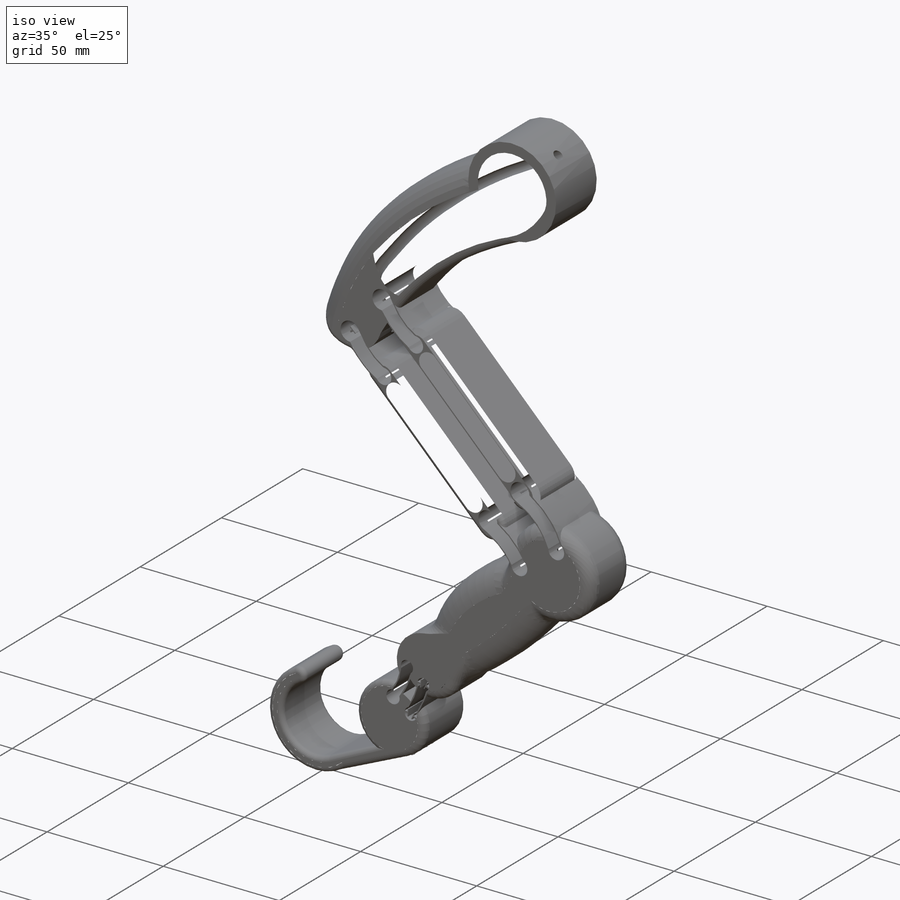
[diagram: iso view]
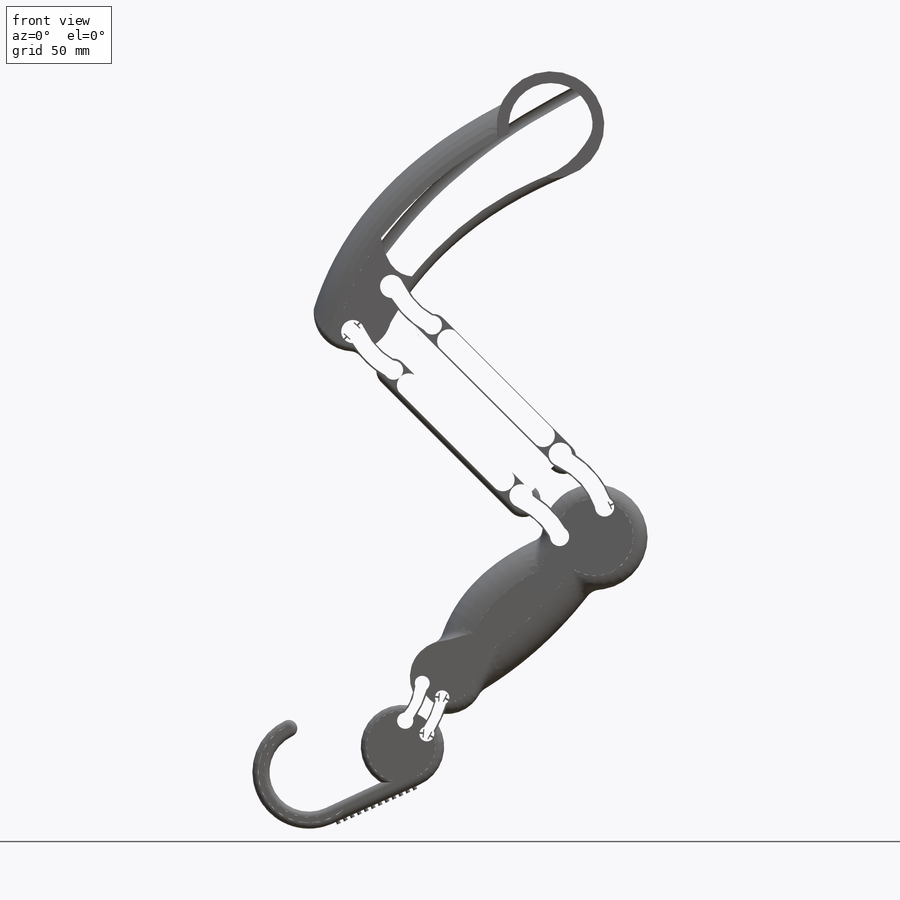
[diagram: front view]
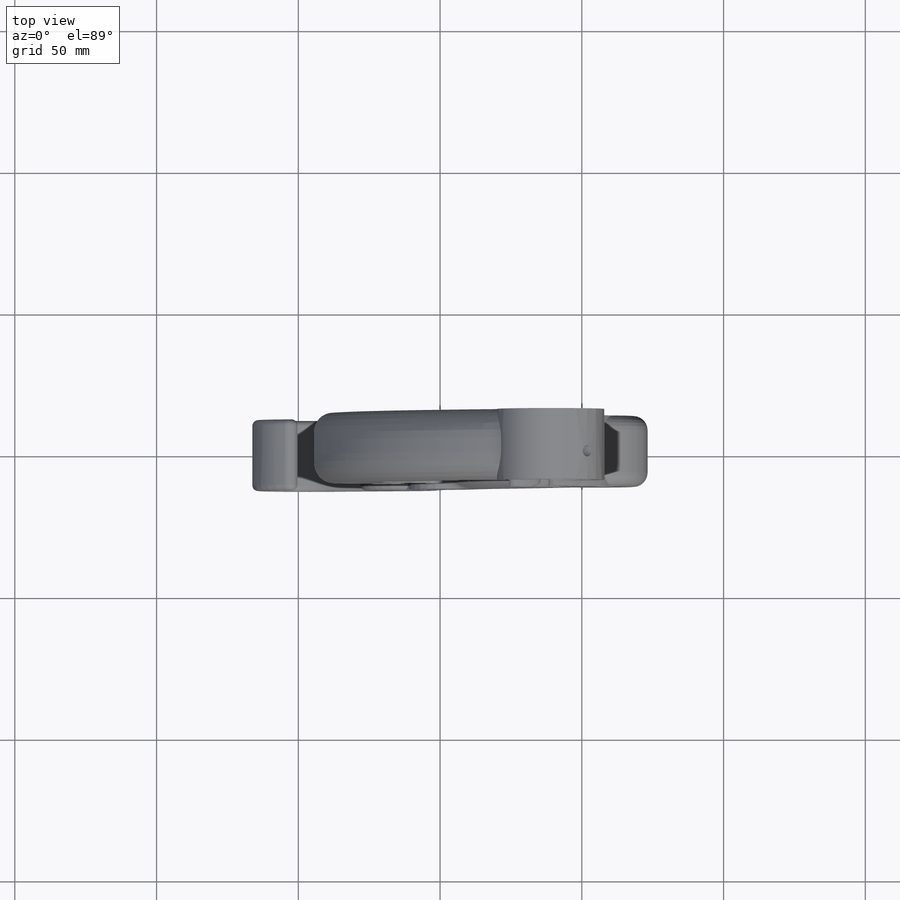
[diagram: top view]
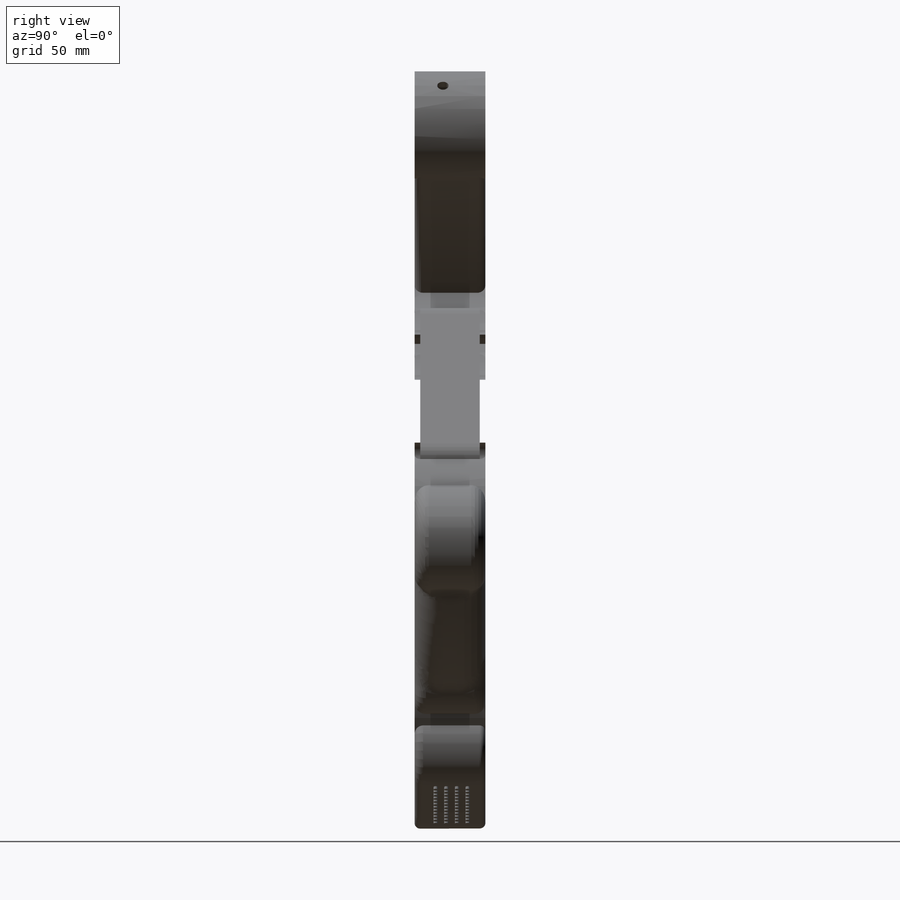
[diagram: right view]
SOLIDWORKS PART (.sldprt)
format: sldprt  version: not decoded by parser v0  size: 1,926,656 bytes
history: native  units: mm
features: fillet x24, sketch x19, extrude x13, plane x7, sweep x2, material x1 (+12 scaffold rows collapsed)
feature tree (78):
  scaffold x12  (default folders/planes/origin — collapsed)
  material  "Material <not specified>"
  sketch  "Sketch1"  dims[c1.D1=30.0mm c1.D2=~20.448397mm c2.D1=~70.600462mm c2.D2=10.0mm c2.D3=10.0mm c3.D1=~194.848427mm c3.D2=3.0mm c3.D3=3.0mm c4.D2=~19.791468mm c5.D2=~66.168793deg]
  extrude  "Boss-Extrude1"  Depth=25mm
  sketch  "Sketch1<3>"  dims[D1=25.0mm D5=0.5mm D6=1.0mm D7=5.0mm]
  extrude  "Boss-Extrude2"  [1 undecoded]
  sketch  "Sketch1<4>"  dims[D1=25.0mm]
  extrude  "Extrude-Thin2"  [1 undecoded]
  sketch  "Sketch1<5>"  dims[D1=25.0mm D5=0.5mm D6=1.0mm D7=5.0mm]
  extrude  "Boss-Extrude3"  [1 undecoded]
  sketch  "Sketch1<6>"  dims[D1=25.0mm]
  plane  "Plane1"
  sketch  "Sketch2"  dims[D1=~1.430174mm]
  sketch  "Sketch3"  dims[D1=10.0mm]
  sweep  "Cut-Sweep1"
  fillet  "Fillet5"  Radius=10mm
  fillet  "Fillet11"  Radius=2mm
  extrude  "Boss-Extrude4"  [1 undecoded]
  sketch  "Sketch1<7>"  dims[D1=25.0mm]
  fillet  "Fillet26"  Radius=10mm
  fillet  "Fillet27"  Radius=10mm
  fillet  "Fillet28"  Radius=5mm
  fillet  "Fillet29"  Radius=5mm
  fillet  "Fillet31"  Radius=6mm
  fillet  "Fillet34"  Radius=5mm
  extrude  "Extrude-Thin3"  [1 undecoded]
  sketch  "Sketch1<9>"  dims[D1=25.0mm D5=0.5mm D6=1.0mm D7=5.0mm]
  fillet  "Fillet40"  Radius=3mm
  extrude  "Boss-Extrude6"  [1 undecoded]
  sketch  "Sketch1<10>"  dims[D1=25.0mm]
  extrude  "Extrude-Thin5"  [1 undecoded]
  sketch  "Sketch1<12>"  dims[D1=25.0mm D5=0.5mm D6=1.0mm D7=5.0mm]
  fillet  "Fillet41"  Radius=3mm
  fillet  "Fillet43"  Radius=2mm
  plane  "Plane8"
  sketch  "Sketch5"
  extrude  "Boss-Extrude7"  Depth=1mm
  sketch  "Sketch6"  dims[c1.D1=12.0 c1.D3=50.0mm c1.D2=1.0 c1.D4=50.0mm c2.D1=4.0 c2.D3=50.0mm c2.D2=1.0 c2.D4=50.0mm]
  fillet  "Fillet44"  Radius=5mm
  fillet  "Fillet45"  Radius=6mm
  fillet  "Fillet46"  Radius=4mm
  fillet  "Fillet47"  Radius=4mm
  fillet  "Fillet48"  Radius=4mm
  extrude  "Boss-Extrude8"  [1 undecoded]
  sketch  "Sketch1<13>"  dims[D1=16.0mm]
  plane  "Plane9"
  sketch  "Sketch7"  dims[D1=~1.60428mm]
  sketch  "Sketch8"  dims[D1=10.0mm D2=15.0mm]
  sweep  "Cut-Sweep2"
  fillet  "Fillet49"  Radius=2mm
  fillet  "Fillet50"  Radius=2mm
  fillet  "Fillet51"  Radius=2mm
  fillet  "Fillet52"  Radius=2mm
  fillet  "Fillet53"  Radius=2mm
  fillet  "Fillet54"  Radius=1.8mm
  extrude  "Boss-Extrude9"  [1 undecoded]
  sketch  "Sketch1<16>"  dims[D1=16.0mm]
  plane  "Plane10"
  sketch  "Sketch9"  dims[D1=10.0mm D2=30.0mm]
  extrude  "Boss-Extrude10"  Depth=5mm
  plane  "Plane11"
  plane  "Plane12"
  sketch  "Sketch11"
  extrude  "Boss-Extrude11"  Depth=5mm
  fillet  "Fillet62"  Radius=4.09mm
  fillet  "Fillet63"  Radius=8mm
  plane  "Plane13"
decode coverage: 45 of 58 modeling features carry decoded parameters
note: ~ marks probable driven/reference dimensions
note: 9 parameter values undecoded
summary: no parameter record found for 9 features
note: suppression state not decoded; provenance and decode notes live in map.json
